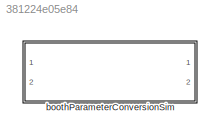
MODEL slx_381224e05e84
KIND library
CONFIG AbsTol = auto
CONFIG EnableMultiTasking = off
CONFIG FixedStep = auto
CONFIG MaxStep = auto
CONFIG MinStep = auto
CONFIG RelTol = 1e-3
CONFIG SampleTimeConstraint = Unconstrained
CONFIG SolverName = VariableStepAuto
CONFIG StartTime = 0.0
CONFIG StopTime = 10.0
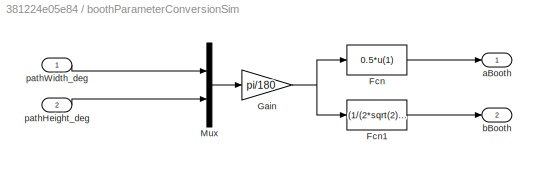
BLOCK [SubSystem] boothParameterConversionSim
  Ports = [2, 2]
  RequestExecContextInheritance = off
BLOCK [Fcn] boothParameterConversionSim/Fcn
  Expr = 0.5*u(1)
BLOCK [Fcn] boothParameterConversionSim/Fcn1
  Expr = (1/(2*sqrt(2)))*sqrt(-(u(1)^2)+sqrt(((u(2)^2)*(4+(u(2)^2))*(u(1)^4)))/(u(2)^2))
BLOCK [Gain] boothParameterConversionSim/Gain
  Gain = pi/180
BLOCK [Mux] boothParameterConversionSim/Mux
  DisplayOption = bar
  Inputs = 2
  Ports = [2, 1]
BLOCK [Outport] boothParameterConversionSim/aBooth
  PortDimensions = 1
BLOCK [Outport] boothParameterConversionSim/bBooth
  Port = 2
  PortDimensions = 1
BLOCK [Inport] boothParameterConversionSim/pathHeight_deg
  Port = 2
  PortDimensions = 1
BLOCK [Inport] boothParameterConversionSim/pathWidth_deg
  PortDimensions = 1
LINE boothParameterConversionSim/Fcn1:1 -> boothParameterConversionSim/bBooth:1
LINE boothParameterConversionSim/Fcn:1 -> boothParameterConversionSim/aBooth:1
NET boothParameterConversionSim/Gain:1 -> boothParameterConversionSim/Fcn1:1, boothParameterConversionSim/Fcn:1
LINE boothParameterConversionSim/Mux:1 -> boothParameterConversionSim/Gain:1
LINE boothParameterConversionSim/pathHeight_deg:1 -> boothParameterConversionSim/Mux:2
LINE boothParameterConversionSim/pathWidth_deg:1 -> boothParameterConversionSim/Mux:1
note: NET lines group one-source signal fan-out (src -> all destinations, sorted); 1:1 wires keep LINE
